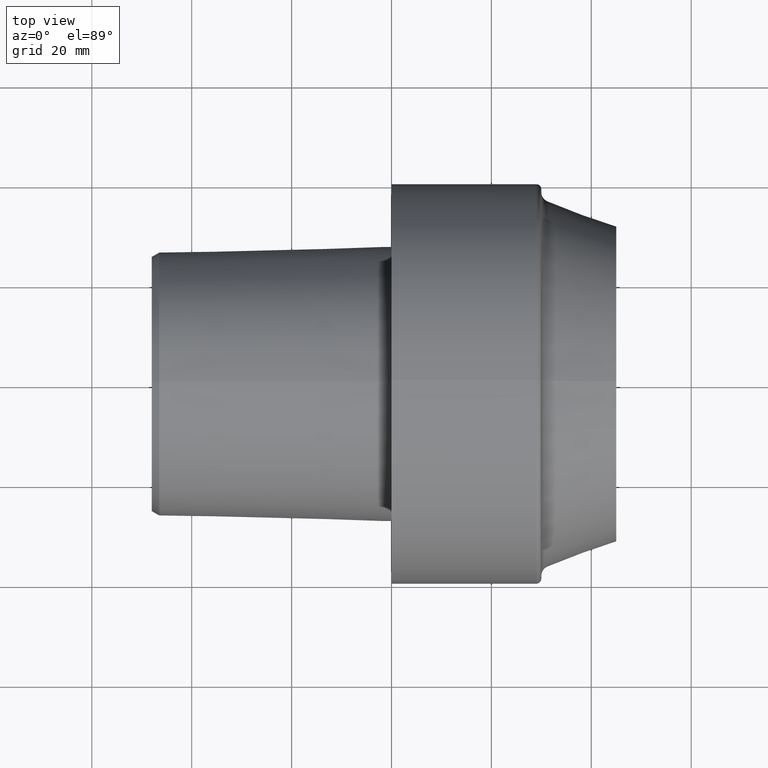
[diagram: clean part render]
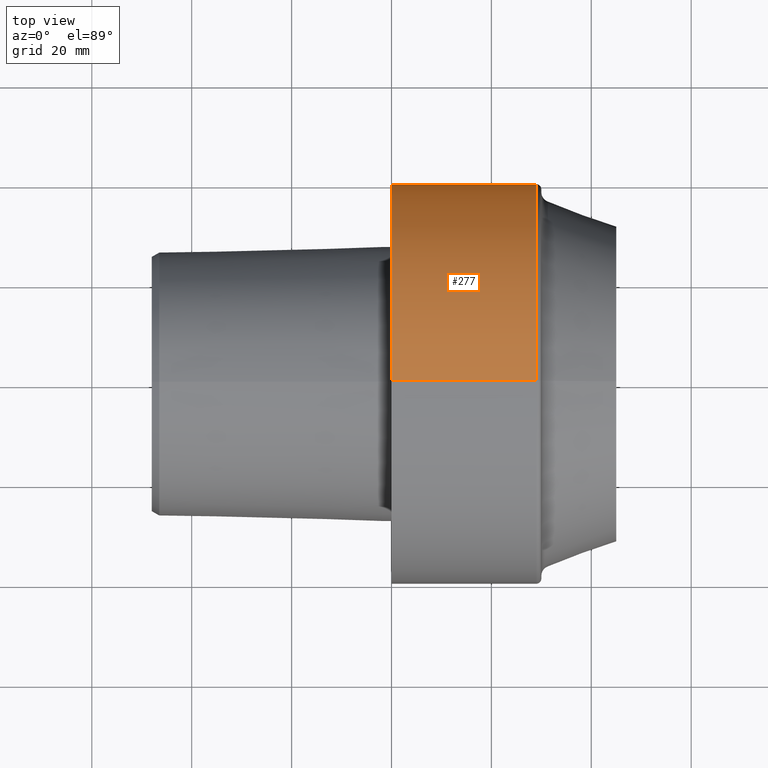
[diagram: same view with one face highlighted and labeled with its STEP entity id]
A machine part, top view. The second image highlights one B-rep face of the part: STEP entity #277.
In plain terms, the highlighted cylindrical surface (partial cylindrical patch) has radius 39.9925 mm, axis along (-1, 0, 0).
Its self-contained STEP definition (entity closure, byte-faithful):
#18 = DIRECTION ( 'NONE',  ( -1.000000000000000000, 0.000000000000000000, 0.000000000000000000 ) ) ;
#21 = ORIENTED_EDGE ( 'NONE', *, *, #185, .T. ) ;
#36 = CARTESIAN_POINT ( 'NONE',  ( 28.99999997311141797, 4.897668707065322260E-15, -39.99249996386929951 ) ) ;
#42 = CARTESIAN_POINT ( 'NONE',  ( 2.691416640612785863E-09, 0.000000000000000000, 39.99249996386929951 ) ) ;
#57 = CIRCLE ( 'NONE', #369, 39.99249996386929951 ) ;
#61 = CARTESIAN_POINT ( 'NONE',  ( 28.99999997311141797, 0.000000000000000000, 0.000000000000000000 ) ) ;
#64 = ORIENTED_EDGE ( 'NONE', *, *, #228, .F. ) ;
#71 = VECTOR ( 'NONE', #217, 1000.000000000000000 ) ;
#80 = CARTESIAN_POINT ( 'NONE',  ( 2.691416640612785863E-09, 0.000000000000000000, 0.000000000000000000 ) ) ;
#90 = VERTEX_POINT ( 'NONE', #42 ) ;
#105 = DIRECTION ( 'NONE',  ( -1.000000000000000000, 0.000000000000000000, 0.000000000000000000 ) ) ;
#185 = EDGE_CURVE ( 'NONE', #290, #385, #213, .T. ) ;
#187 = CARTESIAN_POINT ( 'NONE',  ( 28.99999997311141797, 0.000000000000000000, 39.99249996386929951 ) ) ;
#198 = FACE_OUTER_BOUND ( 'NONE', #291, .T. ) ;
#211 = EDGE_CURVE ( 'NONE', #504, #290, #57, .T. ) ;
#213 = LINE ( 'NONE', #288, #71 ) ;
#217 = DIRECTION ( 'NONE',  ( -1.000000000000000000, 0.000000000000000000, 0.000000000000000000 ) ) ;
#228 = EDGE_CURVE ( 'NONE', #504, #90, #258, .T. ) ;
#236 = DIRECTION ( 'NONE',  ( 0.000000000000000000, 0.000000000000000000, 1.000000000000000000 ) ) ;
#258 = LINE ( 'NONE', #467, #429 ) ;
#265 = ORIENTED_EDGE ( 'NONE', *, *, #211, .T. ) ;
#277 = ADVANCED_FACE ( 'NONE', ( #198 ), #522, .T. ) ;
#284 = CIRCLE ( 'NONE', #514, 39.99249996386929951 ) ;
#288 = CARTESIAN_POINT ( 'NONE',  ( -47.99999995507708661, 4.897668707065322260E-15, -39.99249996386929951 ) ) ;
#289 = ORIENTED_EDGE ( 'NONE', *, *, #321, .F. ) ;
#290 = VERTEX_POINT ( 'NONE', #36 ) ;
#291 = EDGE_LOOP ( 'NONE', ( #265, #21, #289, #64 ) ) ;
#311 = CARTESIAN_POINT ( 'NONE',  ( -47.99999995507708661, 0.000000000000000000, 0.000000000000000000 ) ) ;
#321 = EDGE_CURVE ( 'NONE', #90, #385, #284, .T. ) ;
#346 = DIRECTION ( 'NONE',  ( -1.000000000000000000, 0.000000000000000000, 0.000000000000000000 ) ) ;
#369 = AXIS2_PLACEMENT_3D ( 'NONE', #61, #18, #510 ) ;
#385 = VERTEX_POINT ( 'NONE', #446 ) ;
#414 = AXIS2_PLACEMENT_3D ( 'NONE', #311, #483, #236 ) ;
#429 = VECTOR ( 'NONE', #346, 1000.000000000000000 ) ;
#443 = DIRECTION ( 'NONE',  ( 0.000000000000000000, 0.000000000000000000, 1.000000000000000000 ) ) ;
#446 = CARTESIAN_POINT ( 'NONE',  ( 2.691416640612785863E-09, 4.897668707065322260E-15, -39.99249996386929951 ) ) ;
#467 = CARTESIAN_POINT ( 'NONE',  ( -47.99999995507708661, 0.000000000000000000, 39.99249996386929951 ) ) ;
#483 = DIRECTION ( 'NONE',  ( -1.000000000000000000, 0.000000000000000000, 0.000000000000000000 ) ) ;
#504 = VERTEX_POINT ( 'NONE', #187 ) ;
#510 = DIRECTION ( 'NONE',  ( 0.000000000000000000, 0.000000000000000000, 1.000000000000000000 ) ) ;
#514 = AXIS2_PLACEMENT_3D ( 'NONE', #80, #105, #443 ) ;
#522 = CYLINDRICAL_SURFACE ( 'NONE', #414, 39.99249996386929951 ) ;